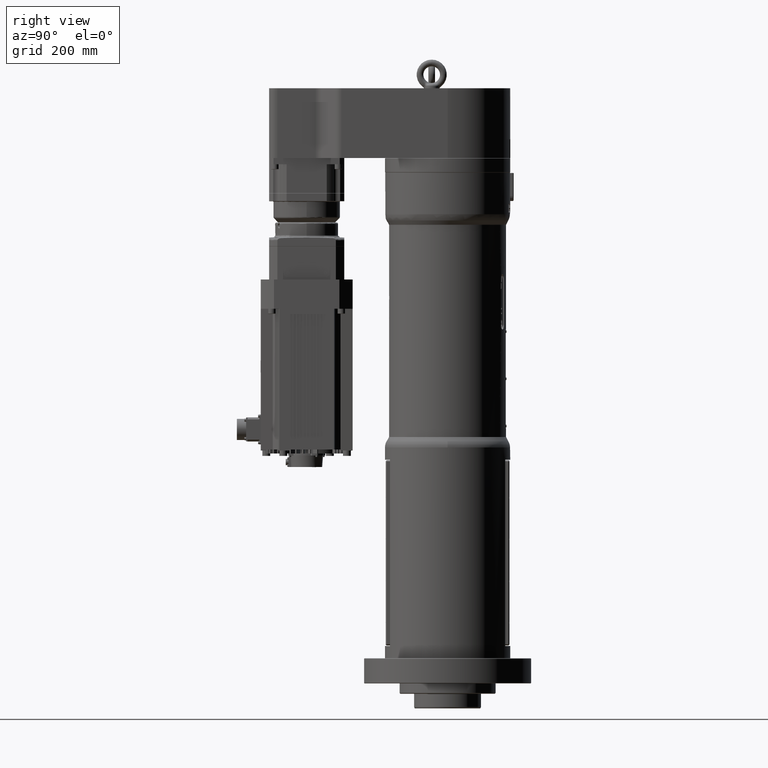
[diagram: clean part render]
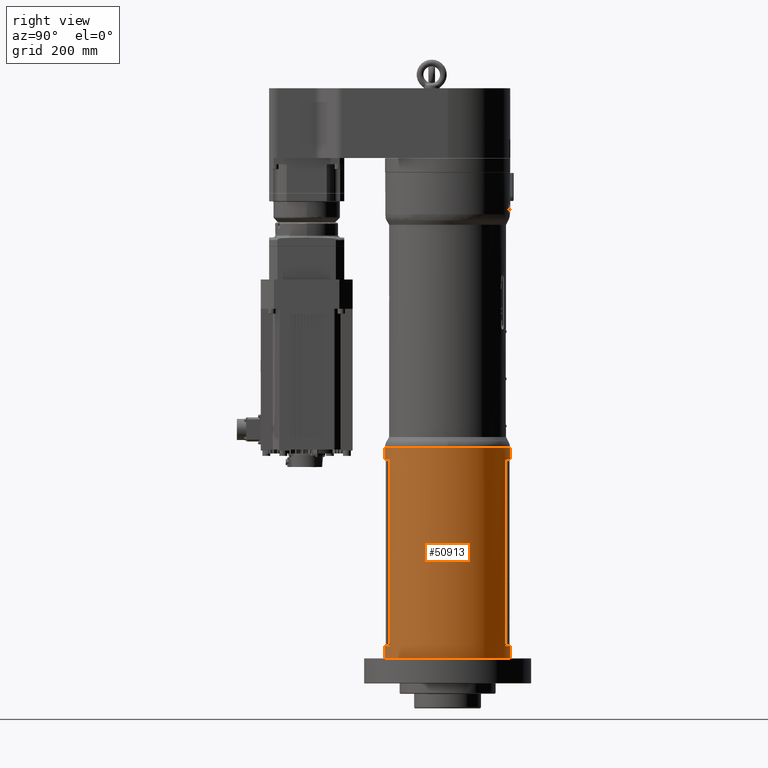
[diagram: same view with one face highlighted and labeled with its STEP entity id]
A machine part, right view. The second image highlights one B-rep face of the part: STEP entity #50913.
In plain terms, the highlighted cylindrical surface (bore or boss wall) has radius 150 mm, axis along (0, 0, -1).
Its self-contained STEP definition (entity closure, byte-faithful):
#846=FACE_BOUND('',#10762,.T.);
#4486=CIRCLE('',#54032,150.);
#4487=CIRCLE('',#54033,150.);
#4488=CIRCLE('',#54035,150.);
#4489=CIRCLE('',#54036,150.);
#4490=CIRCLE('',#54038,150.);
#4491=CIRCLE('',#54040,150.);
#4498=CIRCLE('',#54052,150.);
#4499=CIRCLE('',#54053,150.);
#4501=CIRCLE('',#54056,150.);
#7911=FACE_OUTER_BOUND('',#10761,.T.);
#10761=EDGE_LOOP('',(#36272,#36273,#36274,#36275,#36276,#36277,#36278,#36279,
#36280,#36281,#36282,#36283,#36284));
#10762=EDGE_LOOP('',(#36285,#36286,#36287,#36288));
#13936=LINE('',#72475,#18343);
#13938=LINE('',#72479,#18345);
#13949=LINE('',#72512,#18356);
#13951=LINE('',#72516,#18358);
#14044=LINE('',#72963,#18451);
#14045=LINE('',#72964,#18452);
#18343=VECTOR('',#58916,10.);
#18345=VECTOR('',#58918,10.);
#18356=VECTOR('',#58945,10.);
#18358=VECTOR('',#58947,10.);
#18451=VECTOR('',#59232,150.);
#18452=VECTOR('',#59233,150.);
#23467=VERTEX_POINT('',#72473);
#23468=VERTEX_POINT('',#72474);
#23469=VERTEX_POINT('',#72476);
#23470=VERTEX_POINT('',#72478);
#23483=VERTEX_POINT('',#72510);
#23484=VERTEX_POINT('',#72511);
#23485=VERTEX_POINT('',#72513);
#23486=VERTEX_POINT('',#72515);
#23589=VERTEX_POINT('',#72924);
#23590=VERTEX_POINT('',#72928);
#23596=VERTEX_POINT('',#72955);
#23597=VERTEX_POINT('',#72956);
#23598=VERTEX_POINT('',#72961);
#28438=EDGE_CURVE('',#23467,#23468,#13936,.T.);
#28440=EDGE_CURVE('',#23470,#23469,#13938,.T.);
#28455=EDGE_CURVE('',#23483,#23484,#13949,.T.);
#28457=EDGE_CURVE('',#23486,#23485,#13951,.T.);
#28597=EDGE_CURVE('',#23484,#23589,#4486,.T.);
#28598=EDGE_CURVE('',#23589,#23486,#4487,.T.);
#28599=EDGE_CURVE('',#23485,#23590,#4488,.T.);
#28600=EDGE_CURVE('',#23590,#23483,#4489,.T.);
#28601=EDGE_CURVE('',#23468,#23470,#4490,.T.);
#28602=EDGE_CURVE('',#23469,#23467,#4491,.T.);
#28613=EDGE_CURVE('',#23596,#23597,#4498,.T.);
#28614=EDGE_CURVE('',#23597,#23596,#4499,.T.);
#28616=EDGE_CURVE('',#23598,#23598,#4501,.T.);
#28617=EDGE_CURVE('',#23598,#23590,#14044,.T.);
#28618=EDGE_CURVE('',#23589,#23596,#14045,.T.);
#36272=ORIENTED_EDGE('',*,*,#28616,.F.);
#36273=ORIENTED_EDGE('',*,*,#28617,.T.);
#36274=ORIENTED_EDGE('',*,*,#28600,.T.);
#36275=ORIENTED_EDGE('',*,*,#28455,.T.);
#36276=ORIENTED_EDGE('',*,*,#28597,.T.);
#36277=ORIENTED_EDGE('',*,*,#28618,.T.);
#36278=ORIENTED_EDGE('',*,*,#28613,.T.);
#36279=ORIENTED_EDGE('',*,*,#28614,.T.);
#36280=ORIENTED_EDGE('',*,*,#28618,.F.);
#36281=ORIENTED_EDGE('',*,*,#28598,.T.);
#36282=ORIENTED_EDGE('',*,*,#28457,.T.);
#36283=ORIENTED_EDGE('',*,*,#28599,.T.);
#36284=ORIENTED_EDGE('',*,*,#28617,.F.);
#36285=ORIENTED_EDGE('',*,*,#28602,.T.);
#36286=ORIENTED_EDGE('',*,*,#28438,.T.);
#36287=ORIENTED_EDGE('',*,*,#28601,.T.);
#36288=ORIENTED_EDGE('',*,*,#28440,.T.);
#50230=CYLINDRICAL_SURFACE('',#54055,150.);
#50913=ADVANCED_FACE('',(#7911,#846),#50230,.T.);
#54032=AXIS2_PLACEMENT_3D('',#72925,#59178,#59179);
#54033=AXIS2_PLACEMENT_3D('',#72926,#59180,#59181);
#54035=AXIS2_PLACEMENT_3D('',#72929,#59184,#59185);
#54036=AXIS2_PLACEMENT_3D('',#72930,#59186,#59187);
#54038=AXIS2_PLACEMENT_3D('',#72932,#59190,#59191);
#54040=AXIS2_PLACEMENT_3D('',#72934,#59194,#59195);
#54052=AXIS2_PLACEMENT_3D('',#72957,#59222,#59223);
#54053=AXIS2_PLACEMENT_3D('',#72958,#59224,#59225);
#54055=AXIS2_PLACEMENT_3D('',#72960,#59228,#59229);
#54056=AXIS2_PLACEMENT_3D('',#72962,#59230,#59231);
#58916=DIRECTION('',(0.,0.,1.));
#58918=DIRECTION('',(0.,0.,-1.));
#58945=DIRECTION('',(0.,0.,1.));
#58947=DIRECTION('',(0.,0.,-1.));
#59178=DIRECTION('center_axis',(0.,0.,1.));
#59179=DIRECTION('ref_axis',(1.03537993810258E-30,1.,0.));
#59180=DIRECTION('center_axis',(0.,0.,1.));
#59181=DIRECTION('ref_axis',(1.03537993810258E-30,1.,0.));
#59184=DIRECTION('center_axis',(2.2990052930329E-46,2.22044604925031E-16,
-1.));
#59185=DIRECTION('ref_axis',(1.03537993810258E-30,1.,0.));
#59186=DIRECTION('center_axis',(2.2990052930329E-46,2.22044604925031E-16,
-1.));
#59187=DIRECTION('ref_axis',(1.03537993810258E-30,1.,0.));
#59190=DIRECTION('center_axis',(0.,0.,1.));
#59191=DIRECTION('ref_axis',(1.03537993810258E-30,1.,0.));
#59194=DIRECTION('center_axis',(-2.2990052930329E-46,-2.22044604925031E-16,
-1.));
#59195=DIRECTION('ref_axis',(1.03537993810258E-30,1.,0.));
#59222=DIRECTION('center_axis',(0.,0.,-1.));
#59223=DIRECTION('ref_axis',(1.,-1.03537993810258E-30,0.));
#59224=DIRECTION('center_axis',(0.,0.,-1.));
#59225=DIRECTION('ref_axis',(1.,-1.03537993810258E-30,0.));
#59228=DIRECTION('center_axis',(0.,0.,-1.));
#59229=DIRECTION('ref_axis',(1.03537993810258E-30,1.,0.));
#59230=DIRECTION('center_axis',(0.,0.,-1.));
#59231=DIRECTION('ref_axis',(1.03537993810258E-30,1.,0.));
#59232=DIRECTION('',(0.,0.,1.));
#59233=DIRECTION('',(0.,0.,1.));
#72473=CARTESIAN_POINT('',(58.7877538267961,138.,89.5));
#72474=CARTESIAN_POINT('',(58.7877538267964,138.,535.5));
#72475=CARTESIAN_POINT('',(58.7877538267962,138.,312.320508075689));
#72476=CARTESIAN_POINT('',(-58.7877538267961,138.,89.5));
#72478=CARTESIAN_POINT('',(-58.7877538267964,138.,535.5));
#72479=CARTESIAN_POINT('',(-58.7877538267962,138.,312.320508075689));
#72510=CARTESIAN_POINT('',(-58.7877538267961,-138.,89.5));
#72511=CARTESIAN_POINT('',(-58.7877538267964,-138.,535.5));
#72512=CARTESIAN_POINT('',(-58.7877538267962,-138.,312.320508075689));
#72513=CARTESIAN_POINT('',(58.7877538267961,-138.,89.5));
#72515=CARTESIAN_POINT('',(58.7877538267964,-138.,535.5));
#72516=CARTESIAN_POINT('',(58.7877538267962,-138.,312.320508075689));
#72924=CARTESIAN_POINT('',(-1.83697019872105E-14,-150.,535.5));
#72925=CARTESIAN_POINT('Origin',(0.,0.,535.5));
#72926=CARTESIAN_POINT('Origin',(0.,0.,535.5));
#72928=CARTESIAN_POINT('',(-1.83697019872105E-14,-150.,89.4999999999999));
#72929=CARTESIAN_POINT('Origin',(0.,0.,89.5));
#72930=CARTESIAN_POINT('Origin',(0.,0.,89.5));
#72932=CARTESIAN_POINT('Origin',(0.,0.,535.5));
#72934=CARTESIAN_POINT('Origin',(0.,0.,89.5));
#72955=CARTESIAN_POINT('',(-1.83697019872105E-14,-150.,564.641016151377));
#72956=CARTESIAN_POINT('',(150.,-1.83697019872105E-14,564.641016151377));
#72957=CARTESIAN_POINT('Origin',(0.,0.,564.641016151377));
#72958=CARTESIAN_POINT('Origin',(0.,0.,564.641016151377));
#72960=CARTESIAN_POINT('Origin',(0.,0.,312.320508075689));
#72961=CARTESIAN_POINT('',(-1.83697019872105E-14,-150.,60.));
#72962=CARTESIAN_POINT('Origin',(0.,0.,60.));
#72963=CARTESIAN_POINT('',(-1.83697019872105E-14,-150.,312.320508075689));
#72964=CARTESIAN_POINT('',(-1.83697019872105E-14,-150.,312.320508075689));